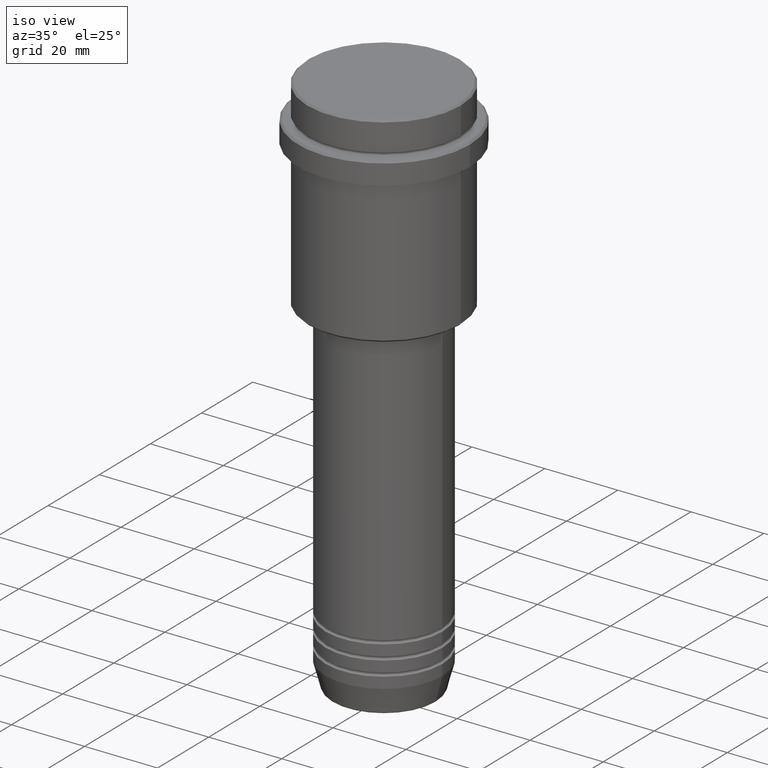
[diagram: clean part render]
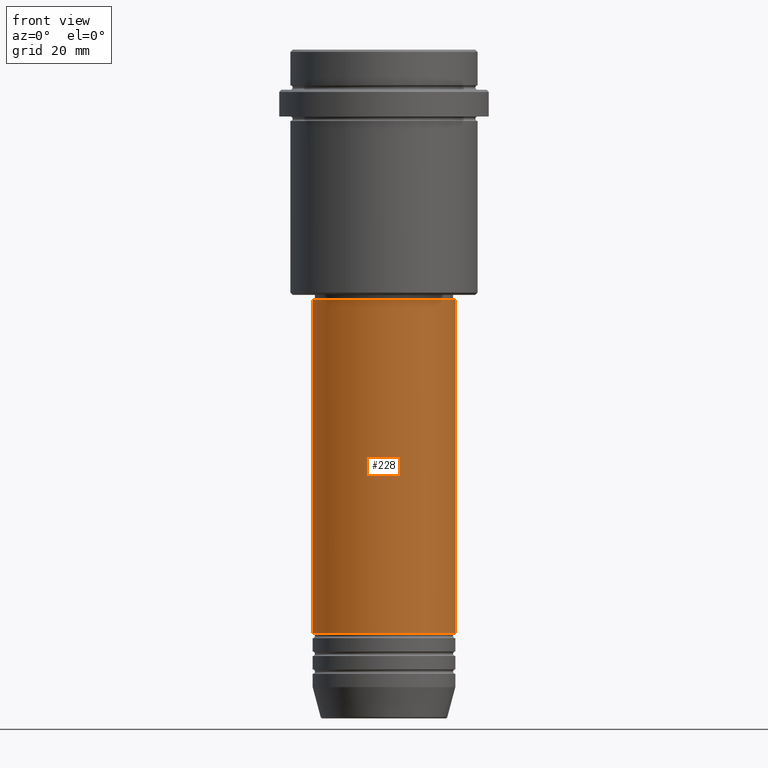
[diagram: tour spotlight — one face highlighted and labeled with its STEP entity id]
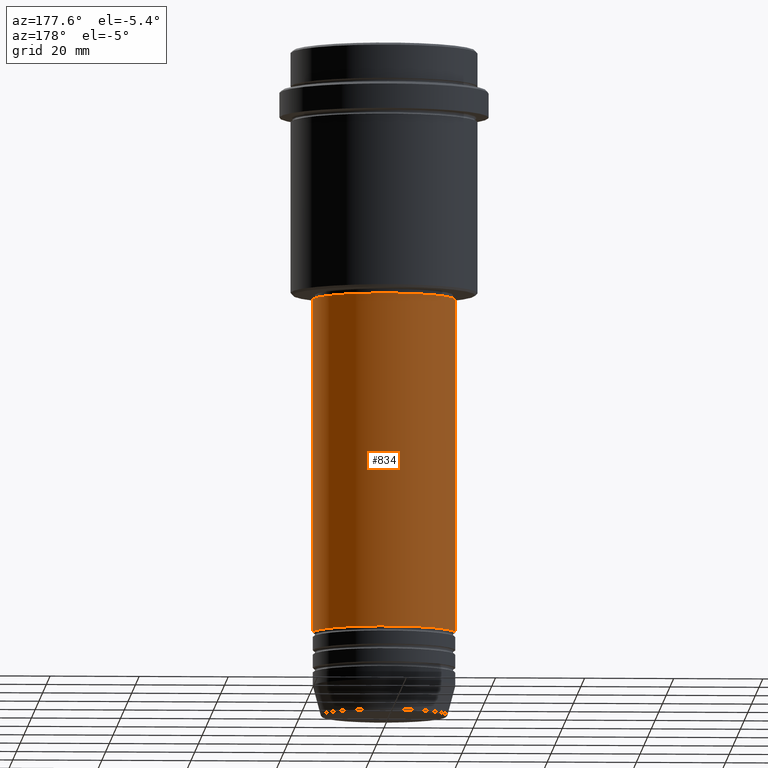
[diagram: tour spotlight — one face highlighted and labeled with its STEP entity id]
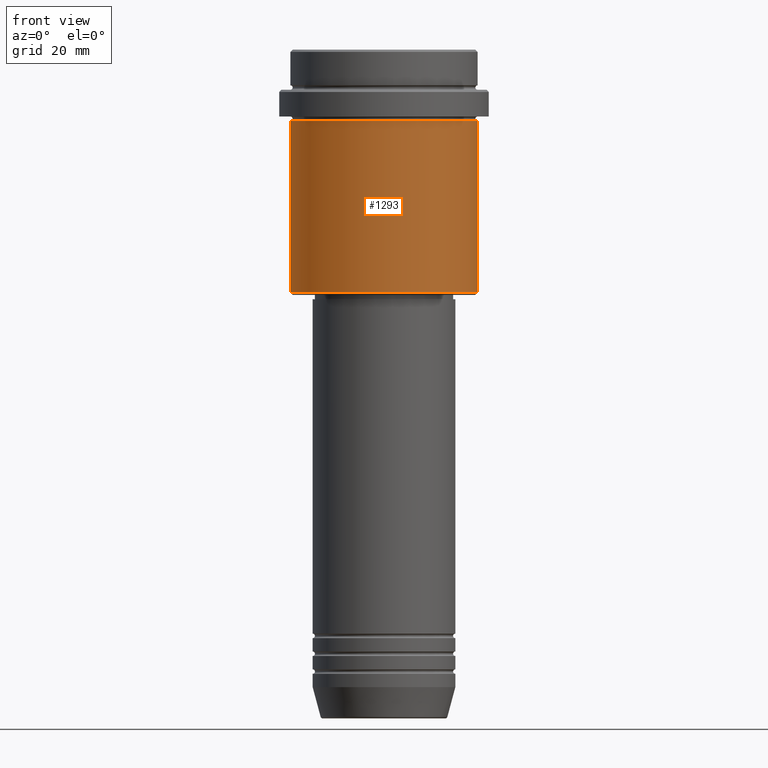
[diagram: tour spotlight — one face highlighted and labeled with its STEP entity id]
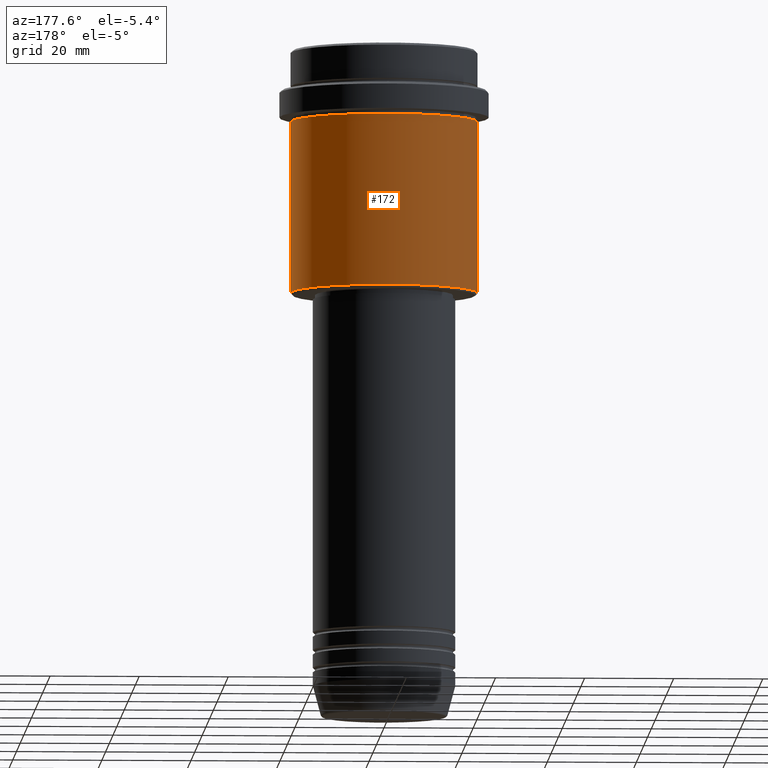
[diagram: tour spotlight — one face highlighted and labeled with its STEP entity id]
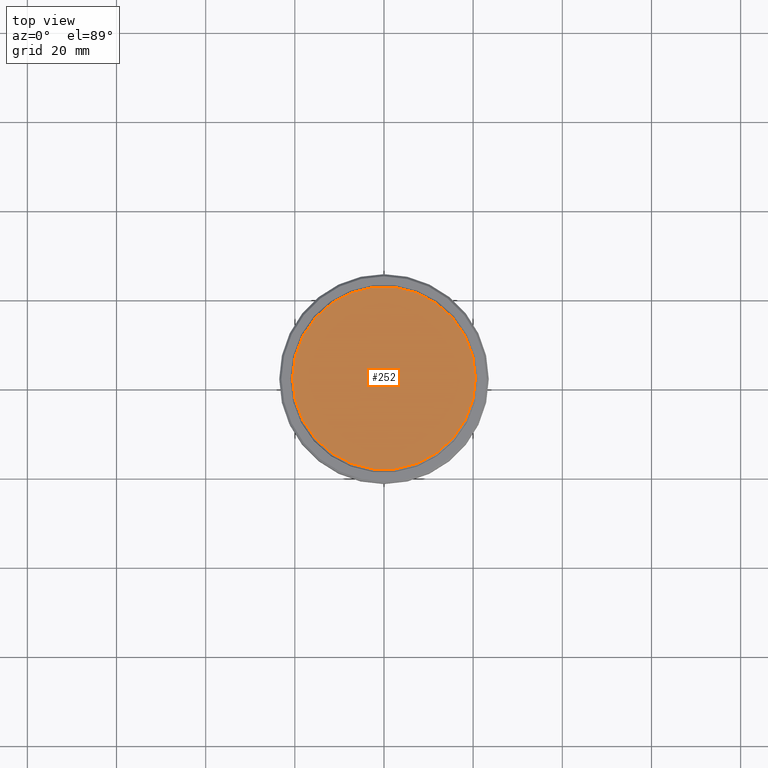
[diagram: tour spotlight — one face highlighted and labeled with its STEP entity id]
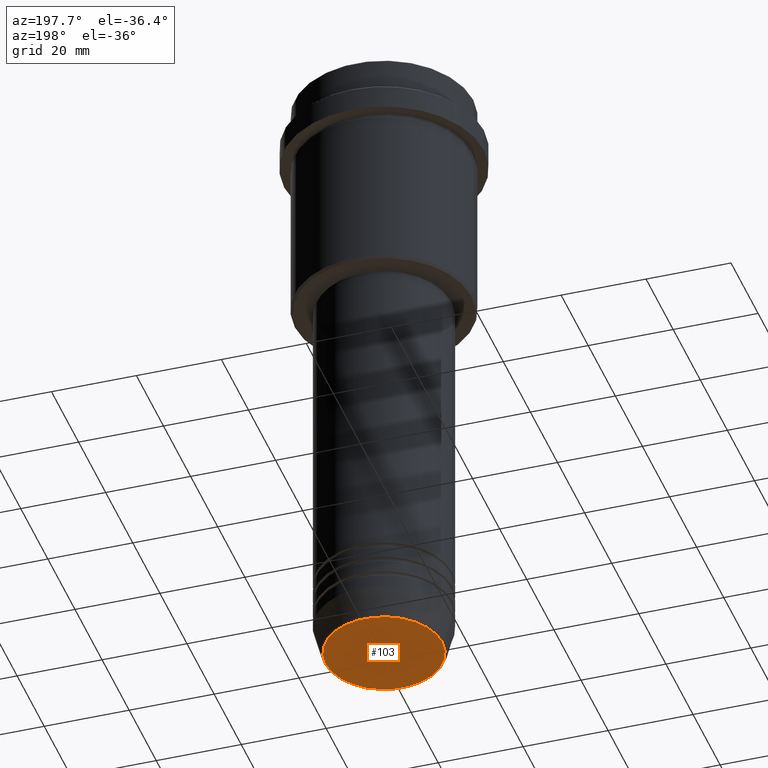
[diagram: tour spotlight — one face highlighted and labeled with its STEP entity id]
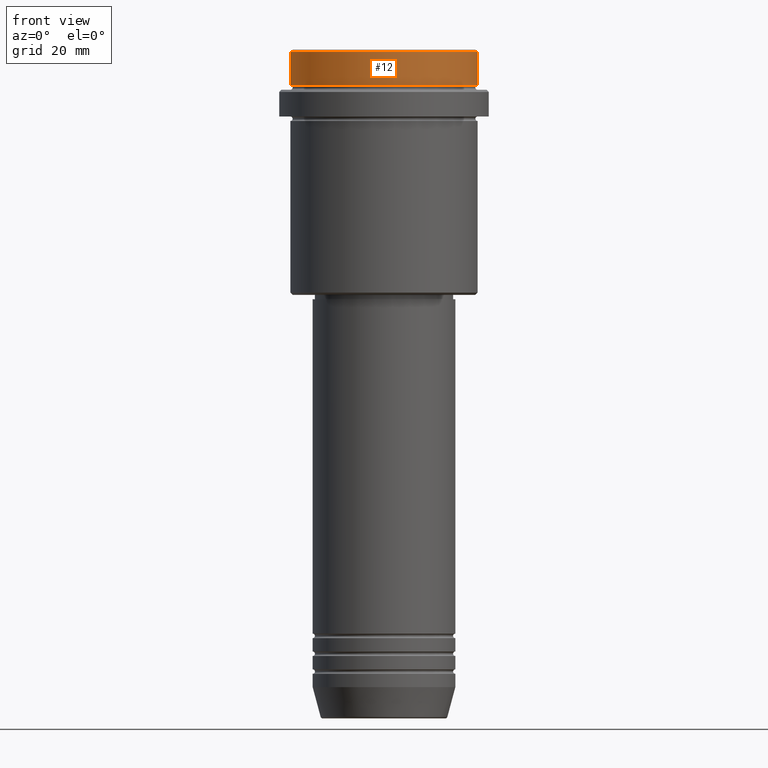
[diagram: tour spotlight — one face highlighted and labeled with its STEP entity id]
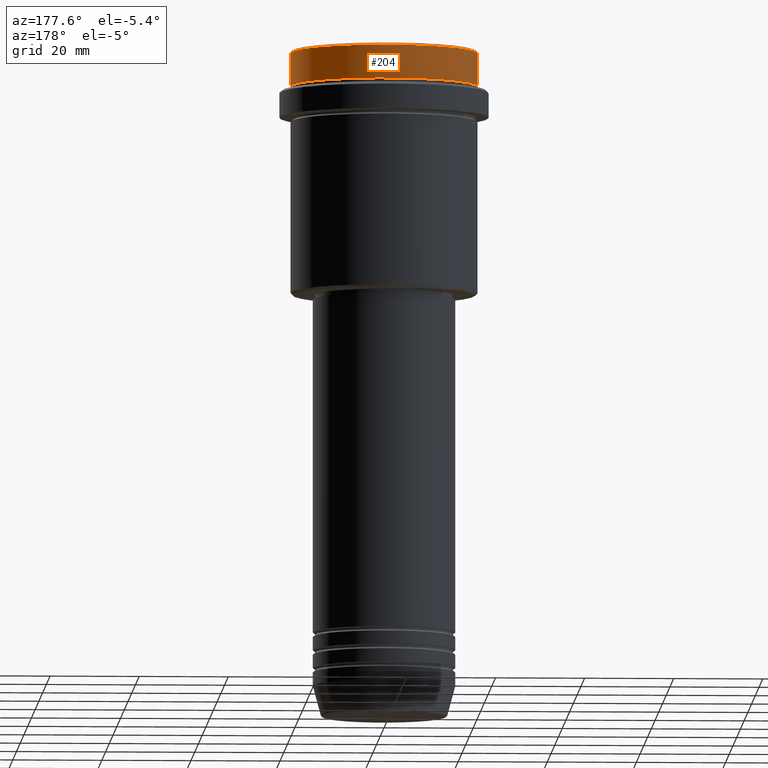
[diagram: tour spotlight — one face highlighted and labeled with its STEP entity id]
A machine part: a face-by-face anatomy tour. The part has 52 B-rep faces; the first image is the clean iso view, then the 8 largest visible faces are spotlighted one at a time (largest first), each with its STEP entity span.

Face 1 — front view, entity #228. In plain terms, the highlighted cylindrical surface (partial cylindrical patch) has radius 16 mm, axis along (-0, -0, 1).
Definition (entity closure, byte-faithful):
#24 = ORIENTED_EDGE ( 'NONE', *, *, #863, .T. ) ;
#51 = CARTESIAN_POINT ( 'NONE',  ( 0.000000000000000000, 0.000000000000000000, -55.99999999999997158 ) ) ;
#66 = VERTEX_POINT ( 'NONE', #1296 ) ;
#95 = LINE ( 'NONE', #737, #379 ) ;
#104 = CARTESIAN_POINT ( 'NONE',  ( 0.000000000000000000, 0.000000000000000000, -130.9999999999998579 ) ) ;
#128 = AXIS2_PLACEMENT_3D ( 'NONE', #276, #1348, #835 ) ;
#130 = DIRECTION ( 'NONE',  ( 1.000000000000000000, 0.000000000000000000, 0.000000000000000000 ) ) ;
#164 = LINE ( 'NONE', #1262, #1046 ) ;
#228 = ADVANCED_FACE ( 'NONE', ( #1315 ), #332, .T. ) ;
#248 = ORIENTED_EDGE ( 'NONE', *, *, #1316, .F. ) ;
#276 = CARTESIAN_POINT ( 'NONE',  ( 0.000000000000000000, 0.000000000000000000, 0.000000000000000000 ) ) ;
#332 = CYLINDRICAL_SURFACE ( 'NONE', #128, 16.00000000000000000 ) ;
#360 = CARTESIAN_POINT ( 'NONE',  ( 16.00000000000000000, 0.000000000000000000, -130.9999999999998579 ) ) ;
#379 = VECTOR ( 'NONE', #1405, 1000.000000000000000 ) ;
#380 = CARTESIAN_POINT ( 'NONE',  ( -16.00000000000000355, 1.959434878635765526E-15, -55.99999999999997158 ) ) ;
#467 = CIRCLE ( 'NONE', #1317, 16.00000000000000000 ) ;
#530 = ORIENTED_EDGE ( 'NONE', *, *, #587, .T. ) ;
#542 = DIRECTION ( 'NONE',  ( -0.000000000000000000, -0.000000000000000000, 1.000000000000000000 ) ) ;
#587 = EDGE_CURVE ( 'NONE', #66, #1197, #467, .T. ) ;
#734 = VERTEX_POINT ( 'NONE', #380 ) ;
#737 = CARTESIAN_POINT ( 'NONE',  ( 16.00000000000000000, 0.000000000000000000, 0.000000000000000000 ) ) ;
#819 = EDGE_CURVE ( 'NONE', #66, #734, #164, .T. ) ;
#835 = DIRECTION ( 'NONE',  ( 1.000000000000000000, 0.000000000000000000, 0.000000000000000000 ) ) ;
#836 = ORIENTED_EDGE ( 'NONE', *, *, #819, .F. ) ;
#863 = EDGE_CURVE ( 'NONE', #1197, #976, #95, .T. ) ;
#880 = EDGE_LOOP ( 'NONE', ( #836, #530, #24, #248 ) ) ;
#976 = VERTEX_POINT ( 'NONE', #1058 ) ;
#1046 = VECTOR ( 'NONE', #1159, 1000.000000000000000 ) ;
#1058 = CARTESIAN_POINT ( 'NONE',  ( 16.00000000000000355, 0.000000000000000000, -55.99999999999997158 ) ) ;
#1159 = DIRECTION ( 'NONE',  ( -0.000000000000000000, -0.000000000000000000, 1.000000000000000000 ) ) ;
#1197 = VERTEX_POINT ( 'NONE', #360 ) ;
#1262 = CARTESIAN_POINT ( 'NONE',  ( -16.00000000000000000, 1.959434878635765131E-15, 0.000000000000000000 ) ) ;
#1276 = AXIS2_PLACEMENT_3D ( 'NONE', #51, #1364, #1377 ) ;
#1296 = CARTESIAN_POINT ( 'NONE',  ( -16.00000000000000000, 1.959434878635765131E-15, -130.9999999999998579 ) ) ;
#1299 = CIRCLE ( 'NONE', #1276, 16.00000000000000355 ) ;
#1315 = FACE_OUTER_BOUND ( 'NONE', #880, .T. ) ;
#1316 = EDGE_CURVE ( 'NONE', #734, #976, #1299, .T. ) ;
#1317 = AXIS2_PLACEMENT_3D ( 'NONE', #104, #542, #130 ) ;
#1348 = DIRECTION ( 'NONE',  ( -0.000000000000000000, -0.000000000000000000, 1.000000000000000000 ) ) ;
#1364 = DIRECTION ( 'NONE',  ( -0.000000000000000000, -0.000000000000000000, 1.000000000000000000 ) ) ;
#1377 = DIRECTION ( 'NONE',  ( 1.000000000000000000, 0.000000000000000000, 0.000000000000000000 ) ) ;
#1405 = DIRECTION ( 'NONE',  ( -0.000000000000000000, -0.000000000000000000, 1.000000000000000000 ) ) ;

Face 2 — auxiliary view, entity #834. In plain terms, the highlighted cylindrical surface (partial cylindrical patch) has radius 16 mm, axis along (-0, -0, 1).
Definition (entity closure, byte-faithful):
#55 = CIRCLE ( 'NONE', #887, 16.00000000000000355 ) ;
#66 = VERTEX_POINT ( 'NONE', #1296 ) ;
#95 = LINE ( 'NONE', #737, #379 ) ;
#150 = CIRCLE ( 'NONE', #840, 16.00000000000000000 ) ;
#164 = LINE ( 'NONE', #1262, #1046 ) ;
#189 = DIRECTION ( 'NONE',  ( 1.000000000000000000, 0.000000000000000000, 0.000000000000000000 ) ) ;
#206 = CARTESIAN_POINT ( 'NONE',  ( 0.000000000000000000, 0.000000000000000000, 0.000000000000000000 ) ) ;
#294 = DIRECTION ( 'NONE',  ( -0.000000000000000000, -0.000000000000000000, 1.000000000000000000 ) ) ;
#323 = CARTESIAN_POINT ( 'NONE',  ( 0.000000000000000000, 0.000000000000000000, -130.9999999999998579 ) ) ;
#360 = CARTESIAN_POINT ( 'NONE',  ( 16.00000000000000000, 0.000000000000000000, -130.9999999999998579 ) ) ;
#379 = VECTOR ( 'NONE', #1405, 1000.000000000000000 ) ;
#380 = CARTESIAN_POINT ( 'NONE',  ( -16.00000000000000355, 1.959434878635765526E-15, -55.99999999999997158 ) ) ;
#404 = ORIENTED_EDGE ( 'NONE', *, *, #1126, .T. ) ;
#442 = DIRECTION ( 'NONE',  ( -0.000000000000000000, -0.000000000000000000, 1.000000000000000000 ) ) ;
#583 = ORIENTED_EDGE ( 'NONE', *, *, #819, .T. ) ;
#637 = CYLINDRICAL_SURFACE ( 'NONE', #1318, 16.00000000000000000 ) ;
#734 = VERTEX_POINT ( 'NONE', #380 ) ;
#737 = CARTESIAN_POINT ( 'NONE',  ( 16.00000000000000000, 0.000000000000000000, 0.000000000000000000 ) ) ;
#819 = EDGE_CURVE ( 'NONE', #66, #734, #164, .T. ) ;
#831 = DIRECTION ( 'NONE',  ( -0.000000000000000000, -0.000000000000000000, 1.000000000000000000 ) ) ;
#834 = ADVANCED_FACE ( 'NONE', ( #959 ), #637, .T. ) ;
#840 = AXIS2_PLACEMENT_3D ( 'NONE', #323, #442, #1107 ) ;
#849 = ORIENTED_EDGE ( 'NONE', *, *, #966, .F. ) ;
#863 = EDGE_CURVE ( 'NONE', #1197, #976, #95, .T. ) ;
#887 = AXIS2_PLACEMENT_3D ( 'NONE', #1155, #831, #189 ) ;
#959 = FACE_OUTER_BOUND ( 'NONE', #1151, .T. ) ;
#966 = EDGE_CURVE ( 'NONE', #976, #734, #55, .T. ) ;
#976 = VERTEX_POINT ( 'NONE', #1058 ) ;
#1046 = VECTOR ( 'NONE', #1159, 1000.000000000000000 ) ;
#1047 = ORIENTED_EDGE ( 'NONE', *, *, #863, .F. ) ;
#1058 = CARTESIAN_POINT ( 'NONE',  ( 16.00000000000000355, 0.000000000000000000, -55.99999999999997158 ) ) ;
#1107 = DIRECTION ( 'NONE',  ( 1.000000000000000000, 0.000000000000000000, 0.000000000000000000 ) ) ;
#1126 = EDGE_CURVE ( 'NONE', #1197, #66, #150, .T. ) ;
#1151 = EDGE_LOOP ( 'NONE', ( #404, #583, #849, #1047 ) ) ;
#1155 = CARTESIAN_POINT ( 'NONE',  ( 0.000000000000000000, 0.000000000000000000, -55.99999999999997158 ) ) ;
#1159 = DIRECTION ( 'NONE',  ( -0.000000000000000000, -0.000000000000000000, 1.000000000000000000 ) ) ;
#1197 = VERTEX_POINT ( 'NONE', #360 ) ;
#1262 = CARTESIAN_POINT ( 'NONE',  ( -16.00000000000000000, 1.959434878635765131E-15, 0.000000000000000000 ) ) ;
#1296 = CARTESIAN_POINT ( 'NONE',  ( -16.00000000000000000, 1.959434878635765131E-15, -130.9999999999998579 ) ) ;
#1318 = AXIS2_PLACEMENT_3D ( 'NONE', #206, #294, #1386 ) ;
#1386 = DIRECTION ( 'NONE',  ( 1.000000000000000000, 0.000000000000000000, 0.000000000000000000 ) ) ;
#1405 = DIRECTION ( 'NONE',  ( -0.000000000000000000, -0.000000000000000000, 1.000000000000000000 ) ) ;

Face 3 — front view, entity #1293. In plain terms, the highlighted cylindrical surface (partial cylindrical patch) has radius 21 mm, axis along (-0, -0, 1).
Definition (entity closure, byte-faithful):
#3 = CARTESIAN_POINT ( 'NONE',  ( -20.99999999999999645, 2.571758278209441267E-15, 0.000000000000000000 ) ) ;
#8 = CARTESIAN_POINT ( 'NONE',  ( -20.99999999999999645, 2.571758278209441267E-15, -54.49999999999998579 ) ) ;
#86 = ORIENTED_EDGE ( 'NONE', *, *, #301, .F. ) ;
#165 = CARTESIAN_POINT ( 'NONE',  ( 0.000000000000000000, 0.000000000000000000, -15.99999999999997691 ) ) ;
#301 = EDGE_CURVE ( 'NONE', #1001, #922, #1325, .T. ) ;
#316 = CARTESIAN_POINT ( 'NONE',  ( 0.000000000000000000, 0.000000000000000000, -54.49999999999998579 ) ) ;
#335 = ORIENTED_EDGE ( 'NONE', *, *, #1246, .T. ) ;
#368 = ORIENTED_EDGE ( 'NONE', *, *, #1165, .T. ) ;
#374 = DIRECTION ( 'NONE',  ( -0.000000000000000000, -0.000000000000000000, 1.000000000000000000 ) ) ;
#465 = CARTESIAN_POINT ( 'NONE',  ( 20.99999999999999645, 0.000000000000000000, 0.000000000000000000 ) ) ;
#493 = AXIS2_PLACEMENT_3D ( 'NONE', #708, #593, #685 ) ;
#504 = DIRECTION ( 'NONE',  ( -0.000000000000000000, -0.000000000000000000, 1.000000000000000000 ) ) ;
#511 = VERTEX_POINT ( 'NONE', #8 ) ;
#559 = CARTESIAN_POINT ( 'NONE',  ( 20.99999999999999645, 0.000000000000000000, -15.99999999999997691 ) ) ;
#593 = DIRECTION ( 'NONE',  ( -0.000000000000000000, -0.000000000000000000, 1.000000000000000000 ) ) ;
#607 = CIRCLE ( 'NONE', #1253, 20.99999999999999645 ) ;
#645 = DIRECTION ( 'NONE',  ( -0.000000000000000000, -0.000000000000000000, 1.000000000000000000 ) ) ;
#669 = EDGE_CURVE ( 'NONE', #511, #1001, #1210, .T. ) ;
#671 = DIRECTION ( 'NONE',  ( -0.000000000000000000, -0.000000000000000000, 1.000000000000000000 ) ) ;
#685 = DIRECTION ( 'NONE',  ( 1.000000000000000000, 0.000000000000000000, 0.000000000000000000 ) ) ;
#708 = CARTESIAN_POINT ( 'NONE',  ( 0.000000000000000000, 0.000000000000000000, 0.000000000000000000 ) ) ;
#730 = VECTOR ( 'NONE', #374, 1000.000000000000000 ) ;
#732 = DIRECTION ( 'NONE',  ( 1.000000000000000000, 0.000000000000000000, 0.000000000000000000 ) ) ;
#873 = AXIS2_PLACEMENT_3D ( 'NONE', #165, #504, #732 ) ;
#922 = VERTEX_POINT ( 'NONE', #559 ) ;
#983 = EDGE_LOOP ( 'NONE', ( #1261, #368, #335, #86 ) ) ;
#1001 = VERTEX_POINT ( 'NONE', #1179 ) ;
#1085 = DIRECTION ( 'NONE',  ( -1.000000000000000000, 0.000000000000000000, 0.000000000000000000 ) ) ;
#1132 = LINE ( 'NONE', #465, #730 ) ;
#1165 = EDGE_CURVE ( 'NONE', #511, #1395, #607, .T. ) ;
#1179 = CARTESIAN_POINT ( 'NONE',  ( -20.99999999999999645, 2.571758278209441267E-15, -15.99999999999997691 ) ) ;
#1210 = LINE ( 'NONE', #3, #1249 ) ;
#1232 = FACE_OUTER_BOUND ( 'NONE', #983, .T. ) ;
#1237 = CARTESIAN_POINT ( 'NONE',  ( 20.99999999999999645, 0.000000000000000000, -54.49999999999998579 ) ) ;
#1246 = EDGE_CURVE ( 'NONE', #1395, #922, #1132, .T. ) ;
#1248 = CYLINDRICAL_SURFACE ( 'NONE', #493, 20.99999999999999645 ) ;
#1249 = VECTOR ( 'NONE', #671, 1000.000000000000000 ) ;
#1253 = AXIS2_PLACEMENT_3D ( 'NONE', #316, #645, #1085 ) ;
#1261 = ORIENTED_EDGE ( 'NONE', *, *, #669, .F. ) ;
#1293 = ADVANCED_FACE ( 'NONE', ( #1232 ), #1248, .T. ) ;
#1325 = CIRCLE ( 'NONE', #873, 20.99999999999999645 ) ;
#1395 = VERTEX_POINT ( 'NONE', #1237 ) ;

Face 4 — auxiliary view, entity #172. In plain terms, the highlighted cylindrical surface (partial cylindrical patch) has radius 21 mm, axis along (-0, -0, 1).
Definition (entity closure, byte-faithful):
#3 = CARTESIAN_POINT ( 'NONE',  ( -20.99999999999999645, 2.571758278209441267E-15, 0.000000000000000000 ) ) ;
#8 = CARTESIAN_POINT ( 'NONE',  ( -20.99999999999999645, 2.571758278209441267E-15, -54.49999999999998579 ) ) ;
#67 = ORIENTED_EDGE ( 'NONE', *, *, #916, .F. ) ;
#93 = EDGE_LOOP ( 'NONE', ( #1275, #1163, #67, #656 ) ) ;
#100 = AXIS2_PLACEMENT_3D ( 'NONE', #327, #773, #226 ) ;
#126 = CARTESIAN_POINT ( 'NONE',  ( 0.000000000000000000, 0.000000000000000000, 0.000000000000000000 ) ) ;
#172 = ADVANCED_FACE ( 'NONE', ( #798 ), #667, .T. ) ;
#226 = DIRECTION ( 'NONE',  ( 1.000000000000000000, 0.000000000000000000, 0.000000000000000000 ) ) ;
#314 = DIRECTION ( 'NONE',  ( -1.000000000000000000, 0.000000000000000000, 0.000000000000000000 ) ) ;
#327 = CARTESIAN_POINT ( 'NONE',  ( 0.000000000000000000, 0.000000000000000000, -15.99999999999997691 ) ) ;
#374 = DIRECTION ( 'NONE',  ( -0.000000000000000000, -0.000000000000000000, 1.000000000000000000 ) ) ;
#465 = CARTESIAN_POINT ( 'NONE',  ( 20.99999999999999645, 0.000000000000000000, 0.000000000000000000 ) ) ;
#511 = VERTEX_POINT ( 'NONE', #8 ) ;
#536 = CIRCLE ( 'NONE', #100, 20.99999999999999645 ) ;
#549 = DIRECTION ( 'NONE',  ( -0.000000000000000000, -0.000000000000000000, 1.000000000000000000 ) ) ;
#559 = CARTESIAN_POINT ( 'NONE',  ( 20.99999999999999645, 0.000000000000000000, -15.99999999999997691 ) ) ;
#635 = AXIS2_PLACEMENT_3D ( 'NONE', #879, #549, #314 ) ;
#656 = ORIENTED_EDGE ( 'NONE', *, *, #1246, .F. ) ;
#663 = DIRECTION ( 'NONE',  ( -0.000000000000000000, -0.000000000000000000, 1.000000000000000000 ) ) ;
#667 = CYLINDRICAL_SURFACE ( 'NONE', #1123, 20.99999999999999645 ) ;
#669 = EDGE_CURVE ( 'NONE', #511, #1001, #1210, .T. ) ;
#671 = DIRECTION ( 'NONE',  ( -0.000000000000000000, -0.000000000000000000, 1.000000000000000000 ) ) ;
#730 = VECTOR ( 'NONE', #374, 1000.000000000000000 ) ;
#773 = DIRECTION ( 'NONE',  ( -0.000000000000000000, -0.000000000000000000, 1.000000000000000000 ) ) ;
#798 = FACE_OUTER_BOUND ( 'NONE', #93, .T. ) ;
#805 = DIRECTION ( 'NONE',  ( 1.000000000000000000, 0.000000000000000000, 0.000000000000000000 ) ) ;
#879 = CARTESIAN_POINT ( 'NONE',  ( 0.000000000000000000, 0.000000000000000000, -54.49999999999998579 ) ) ;
#916 = EDGE_CURVE ( 'NONE', #922, #1001, #536, .T. ) ;
#922 = VERTEX_POINT ( 'NONE', #559 ) ;
#1001 = VERTEX_POINT ( 'NONE', #1179 ) ;
#1031 = CIRCLE ( 'NONE', #635, 20.99999999999999645 ) ;
#1123 = AXIS2_PLACEMENT_3D ( 'NONE', #126, #663, #805 ) ;
#1132 = LINE ( 'NONE', #465, #730 ) ;
#1163 = ORIENTED_EDGE ( 'NONE', *, *, #669, .T. ) ;
#1179 = CARTESIAN_POINT ( 'NONE',  ( -20.99999999999999645, 2.571758278209441267E-15, -15.99999999999997691 ) ) ;
#1210 = LINE ( 'NONE', #3, #1249 ) ;
#1237 = CARTESIAN_POINT ( 'NONE',  ( 20.99999999999999645, 0.000000000000000000, -54.49999999999998579 ) ) ;
#1246 = EDGE_CURVE ( 'NONE', #1395, #922, #1132, .T. ) ;
#1249 = VECTOR ( 'NONE', #671, 1000.000000000000000 ) ;
#1275 = ORIENTED_EDGE ( 'NONE', *, *, #1358, .T. ) ;
#1358 = EDGE_CURVE ( 'NONE', #1395, #511, #1031, .T. ) ;
#1395 = VERTEX_POINT ( 'NONE', #1237 ) ;

Face 5 — top view, entity #252. In plain terms, the highlighted planar face has unit normal (0, -0, 1).
Definition (entity closure, byte-faithful):
#90 = ORIENTED_EDGE ( 'NONE', *, *, #409, .T. ) ;
#185 = VERTEX_POINT ( 'NONE', #579 ) ;
#187 = DIRECTION ( 'NONE',  ( -0.000000000000000000, -0.000000000000000000, 1.000000000000000000 ) ) ;
#252 = ADVANCED_FACE ( 'NONE', ( #589 ), #1052, .T. ) ;
#266 = DIRECTION ( 'NONE',  ( 1.000000000000000000, 0.000000000000000000, 0.000000000000000000 ) ) ;
#330 = CARTESIAN_POINT ( 'NONE',  ( 20.50000000000003197, 2.541142108230759846E-15, 0.000000000000000000 ) ) ;
#333 = CIRCLE ( 'NONE', #652, 20.50000000000003197 ) ;
#370 = EDGE_LOOP ( 'NONE', ( #1127, #90 ) ) ;
#409 = EDGE_CURVE ( 'NONE', #648, #185, #333, .T. ) ;
#471 = AXIS2_PLACEMENT_3D ( 'NONE', #1153, #1270, #597 ) ;
#496 = CIRCLE ( 'NONE', #471, 20.50000000000003197 ) ;
#516 = DIRECTION ( 'NONE',  ( 1.000000000000000000, 0.000000000000000000, 0.000000000000000000 ) ) ;
#579 = CARTESIAN_POINT ( 'NONE',  ( -20.50000000000003197, 0.000000000000000000, 0.000000000000000000 ) ) ;
#589 = FACE_OUTER_BOUND ( 'NONE', #370, .T. ) ;
#591 = AXIS2_PLACEMENT_3D ( 'NONE', #914, #718, #266 ) ;
#597 = DIRECTION ( 'NONE',  ( 1.000000000000000000, 0.000000000000000000, 0.000000000000000000 ) ) ;
#648 = VERTEX_POINT ( 'NONE', #330 ) ;
#652 = AXIS2_PLACEMENT_3D ( 'NONE', #1379, #187, #516 ) ;
#718 = DIRECTION ( 'NONE',  ( 0.000000000000000000, -0.000000000000000000, 1.000000000000000000 ) ) ;
#914 = CARTESIAN_POINT ( 'NONE',  ( 0.000000000000000000, 0.000000000000000000, 0.000000000000000000 ) ) ;
#1052 = PLANE ( 'NONE',  #591 ) ;
#1127 = ORIENTED_EDGE ( 'NONE', *, *, #1314, .T. ) ;
#1153 = CARTESIAN_POINT ( 'NONE',  ( 0.000000000000000000, 0.000000000000000000, 0.000000000000000000 ) ) ;
#1270 = DIRECTION ( 'NONE',  ( -0.000000000000000000, -0.000000000000000000, 1.000000000000000000 ) ) ;
#1314 = EDGE_CURVE ( 'NONE', #185, #648, #496, .T. ) ;
#1379 = CARTESIAN_POINT ( 'NONE',  ( 0.000000000000000000, 0.000000000000000000, 0.000000000000000000 ) ) ;

Face 6 — auxiliary view, entity #103. In plain terms, the highlighted planar face has unit normal (0, -0, 1).
Definition (entity closure, byte-faithful):
#17 = EDGE_LOOP ( 'NONE', ( #394, #712 ) ) ;
#103 = ADVANCED_FACE ( 'NONE', ( #421 ), #1201, .F. ) ;
#113 = DIRECTION ( 'NONE',  ( 1.000000000000000000, 0.000000000000000000, 0.000000000000000000 ) ) ;
#156 = DIRECTION ( 'NONE',  ( 0.000000000000000000, 0.000000000000000000, -1.000000000000000000 ) ) ;
#209 = CARTESIAN_POINT ( 'NONE',  ( 0.000000000000000000, 0.000000000000000000, -149.9999999999999716 ) ) ;
#247 = AXIS2_PLACEMENT_3D ( 'NONE', #933, #156, #1367 ) ;
#336 = EDGE_CURVE ( 'NONE', #1411, #722, #1258, .T. ) ;
#394 = ORIENTED_EDGE ( 'NONE', *, *, #336, .T. ) ;
#421 = FACE_OUTER_BOUND ( 'NONE', #17, .T. ) ;
#425 = EDGE_CURVE ( 'NONE', #722, #1411, #1026, .T. ) ;
#570 = CARTESIAN_POINT ( 'NONE',  ( 13.74069215899265650, 0.000000000000000000, -149.9999999999999716 ) ) ;
#712 = ORIENTED_EDGE ( 'NONE', *, *, #425, .T. ) ;
#722 = VERTEX_POINT ( 'NONE', #919 ) ;
#841 = DIRECTION ( 'NONE',  ( 0.000000000000000000, 0.000000000000000000, -1.000000000000000000 ) ) ;
#850 = DIRECTION ( 'NONE',  ( 1.000000000000000000, 0.000000000000000000, 0.000000000000000000 ) ) ;
#919 = CARTESIAN_POINT ( 'NONE',  ( -13.74069215899265650, 1.712322416342415986E-15, -149.9999999999999716 ) ) ;
#927 = AXIS2_PLACEMENT_3D ( 'NONE', #1178, #841, #850 ) ;
#933 = CARTESIAN_POINT ( 'NONE',  ( 0.000000000000000000, 0.000000000000000000, -149.9999999999999716 ) ) ;
#1026 = CIRCLE ( 'NONE', #927, 13.74069215899265650 ) ;
#1104 = DIRECTION ( 'NONE',  ( 0.000000000000000000, -0.000000000000000000, 1.000000000000000000 ) ) ;
#1178 = CARTESIAN_POINT ( 'NONE',  ( 0.000000000000000000, 0.000000000000000000, -149.9999999999999716 ) ) ;
#1201 = PLANE ( 'NONE',  #1346 ) ;
#1258 = CIRCLE ( 'NONE', #247, 13.74069215899265650 ) ;
#1346 = AXIS2_PLACEMENT_3D ( 'NONE', #209, #1104, #113 ) ;
#1367 = DIRECTION ( 'NONE',  ( 1.000000000000000000, 0.000000000000000000, 0.000000000000000000 ) ) ;
#1411 = VERTEX_POINT ( 'NONE', #570 ) ;

Face 7 — front view, entity #12. In plain terms, the highlighted cylindrical surface (partial cylindrical patch) has radius 21 mm, axis along (-0, -0, 1).
Definition (entity closure, byte-faithful):
#12 = ADVANCED_FACE ( 'NONE', ( #647 ), #106, .T. ) ;
#50 = CARTESIAN_POINT ( 'NONE',  ( 0.000000000000000000, 0.000000000000000000, -7.999999999999998224 ) ) ;
#84 = CARTESIAN_POINT ( 'NONE',  ( -20.99999999999999645, 2.571758278209441267E-15, 0.000000000000000000 ) ) ;
#106 = CYLINDRICAL_SURFACE ( 'NONE', #423, 20.99999999999999645 ) ;
#149 = DIRECTION ( 'NONE',  ( -0.000000000000000000, -0.000000000000000000, 1.000000000000000000 ) ) ;
#175 = CARTESIAN_POINT ( 'NONE',  ( 20.99999999999999645, 0.000000000000000000, -0.4999999999999657496 ) ) ;
#203 = DIRECTION ( 'NONE',  ( -0.000000000000000000, -0.000000000000000000, 1.000000000000000000 ) ) ;
#263 = AXIS2_PLACEMENT_3D ( 'NONE', #50, #492, #930 ) ;
#270 = VERTEX_POINT ( 'NONE', #175 ) ;
#299 = EDGE_LOOP ( 'NONE', ( #410, #646, #1397, #937 ) ) ;
#338 = EDGE_CURVE ( 'NONE', #547, #270, #375, .T. ) ;
#375 = LINE ( 'NONE', #710, #613 ) ;
#401 = DIRECTION ( 'NONE',  ( 1.000000000000000000, 0.000000000000000000, 0.000000000000000000 ) ) ;
#410 = ORIENTED_EDGE ( 'NONE', *, *, #1022, .F. ) ;
#423 = AXIS2_PLACEMENT_3D ( 'NONE', #845, #203, #401 ) ;
#492 = DIRECTION ( 'NONE',  ( -0.000000000000000000, -0.000000000000000000, 1.000000000000000000 ) ) ;
#497 = VERTEX_POINT ( 'NONE', #1301 ) ;
#523 = DIRECTION ( 'NONE',  ( -0.000000000000000000, -0.000000000000000000, 1.000000000000000000 ) ) ;
#547 = VERTEX_POINT ( 'NONE', #1019 ) ;
#613 = VECTOR ( 'NONE', #149, 1000.000000000000000 ) ;
#646 = ORIENTED_EDGE ( 'NONE', *, *, #813, .T. ) ;
#647 = FACE_OUTER_BOUND ( 'NONE', #299, .T. ) ;
#710 = CARTESIAN_POINT ( 'NONE',  ( 20.99999999999999645, 0.000000000000000000, 0.000000000000000000 ) ) ;
#740 = VERTEX_POINT ( 'NONE', #1372 ) ;
#745 = LINE ( 'NONE', #84, #1385 ) ;
#813 = EDGE_CURVE ( 'NONE', #497, #547, #974, .T. ) ;
#845 = CARTESIAN_POINT ( 'NONE',  ( 0.000000000000000000, 0.000000000000000000, 0.000000000000000000 ) ) ;
#856 = EDGE_CURVE ( 'NONE', #270, #740, #1341, .T. ) ;
#930 = DIRECTION ( 'NONE',  ( 1.000000000000000000, 0.000000000000000000, 0.000000000000000000 ) ) ;
#937 = ORIENTED_EDGE ( 'NONE', *, *, #856, .T. ) ;
#949 = CARTESIAN_POINT ( 'NONE',  ( 0.000000000000000000, 0.000000000000000000, -0.4999999999999657496 ) ) ;
#974 = CIRCLE ( 'NONE', #263, 20.99999999999999645 ) ;
#1000 = AXIS2_PLACEMENT_3D ( 'NONE', #949, #1082, #1277 ) ;
#1019 = CARTESIAN_POINT ( 'NONE',  ( 20.99999999999999645, 0.000000000000000000, -7.999999999999998224 ) ) ;
#1022 = EDGE_CURVE ( 'NONE', #497, #740, #745, .T. ) ;
#1082 = DIRECTION ( 'NONE',  ( 0.000000000000000000, 0.000000000000000000, -1.000000000000000000 ) ) ;
#1277 = DIRECTION ( 'NONE',  ( 1.000000000000000000, 0.000000000000000000, 0.000000000000000000 ) ) ;
#1301 = CARTESIAN_POINT ( 'NONE',  ( -20.99999999999999645, 2.571758278209441267E-15, -7.999999999999998224 ) ) ;
#1341 = CIRCLE ( 'NONE', #1000, 20.99999999999999645 ) ;
#1372 = CARTESIAN_POINT ( 'NONE',  ( -20.99999999999999645, 2.571758278209441267E-15, -0.4999999999999657496 ) ) ;
#1385 = VECTOR ( 'NONE', #523, 1000.000000000000000 ) ;
#1397 = ORIENTED_EDGE ( 'NONE', *, *, #338, .T. ) ;

Face 8 — auxiliary view, entity #204. In plain terms, the highlighted cylindrical surface (partial cylindrical patch) has radius 21 mm, axis along (-0, -0, 1).
Definition (entity closure, byte-faithful):
#11 = DIRECTION ( 'NONE',  ( 1.000000000000000000, 0.000000000000000000, 0.000000000000000000 ) ) ;
#33 = CIRCLE ( 'NONE', #1408, 20.99999999999999645 ) ;
#46 = ORIENTED_EDGE ( 'NONE', *, *, #988, .T. ) ;
#70 = DIRECTION ( 'NONE',  ( 0.000000000000000000, 0.000000000000000000, -1.000000000000000000 ) ) ;
#84 = CARTESIAN_POINT ( 'NONE',  ( -20.99999999999999645, 2.571758278209441267E-15, 0.000000000000000000 ) ) ;
#121 = AXIS2_PLACEMENT_3D ( 'NONE', #298, #70, #952 ) ;
#149 = DIRECTION ( 'NONE',  ( -0.000000000000000000, -0.000000000000000000, 1.000000000000000000 ) ) ;
#175 = CARTESIAN_POINT ( 'NONE',  ( 20.99999999999999645, 0.000000000000000000, -0.4999999999999657496 ) ) ;
#204 = ADVANCED_FACE ( 'NONE', ( #1323 ), #556, .T. ) ;
#244 = CARTESIAN_POINT ( 'NONE',  ( 0.000000000000000000, 0.000000000000000000, 0.000000000000000000 ) ) ;
#250 = DIRECTION ( 'NONE',  ( -0.000000000000000000, -0.000000000000000000, 1.000000000000000000 ) ) ;
#270 = VERTEX_POINT ( 'NONE', #175 ) ;
#298 = CARTESIAN_POINT ( 'NONE',  ( 0.000000000000000000, 0.000000000000000000, -0.4999999999999657496 ) ) ;
#338 = EDGE_CURVE ( 'NONE', #547, #270, #375, .T. ) ;
#375 = LINE ( 'NONE', #710, #613 ) ;
#428 = AXIS2_PLACEMENT_3D ( 'NONE', #244, #250, #11 ) ;
#477 = DIRECTION ( 'NONE',  ( -0.000000000000000000, -0.000000000000000000, 1.000000000000000000 ) ) ;
#497 = VERTEX_POINT ( 'NONE', #1301 ) ;
#523 = DIRECTION ( 'NONE',  ( -0.000000000000000000, -0.000000000000000000, 1.000000000000000000 ) ) ;
#547 = VERTEX_POINT ( 'NONE', #1019 ) ;
#556 = CYLINDRICAL_SURFACE ( 'NONE', #428, 20.99999999999999645 ) ;
#604 = CIRCLE ( 'NONE', #121, 20.99999999999999645 ) ;
#613 = VECTOR ( 'NONE', #149, 1000.000000000000000 ) ;
#710 = CARTESIAN_POINT ( 'NONE',  ( 20.99999999999999645, 0.000000000000000000, 0.000000000000000000 ) ) ;
#740 = VERTEX_POINT ( 'NONE', #1372 ) ;
#745 = LINE ( 'NONE', #84, #1385 ) ;
#899 = ORIENTED_EDGE ( 'NONE', *, *, #338, .F. ) ;
#952 = DIRECTION ( 'NONE',  ( 1.000000000000000000, 0.000000000000000000, 0.000000000000000000 ) ) ;
#980 = EDGE_LOOP ( 'NONE', ( #1041, #1088, #46, #899 ) ) ;
#988 = EDGE_CURVE ( 'NONE', #740, #270, #604, .T. ) ;
#1019 = CARTESIAN_POINT ( 'NONE',  ( 20.99999999999999645, 0.000000000000000000, -7.999999999999998224 ) ) ;
#1022 = EDGE_CURVE ( 'NONE', #497, #740, #745, .T. ) ;
#1041 = ORIENTED_EDGE ( 'NONE', *, *, #1415, .T. ) ;
#1088 = ORIENTED_EDGE ( 'NONE', *, *, #1022, .T. ) ;
#1134 = CARTESIAN_POINT ( 'NONE',  ( 0.000000000000000000, 0.000000000000000000, -7.999999999999998224 ) ) ;
#1301 = CARTESIAN_POINT ( 'NONE',  ( -20.99999999999999645, 2.571758278209441267E-15, -7.999999999999998224 ) ) ;
#1323 = FACE_OUTER_BOUND ( 'NONE', #980, .T. ) ;
#1344 = DIRECTION ( 'NONE',  ( 1.000000000000000000, 0.000000000000000000, 0.000000000000000000 ) ) ;
#1372 = CARTESIAN_POINT ( 'NONE',  ( -20.99999999999999645, 2.571758278209441267E-15, -0.4999999999999657496 ) ) ;
#1385 = VECTOR ( 'NONE', #523, 1000.000000000000000 ) ;
#1408 = AXIS2_PLACEMENT_3D ( 'NONE', #1134, #477, #1344 ) ;
#1415 = EDGE_CURVE ( 'NONE', #547, #497, #33, .T. ) ;